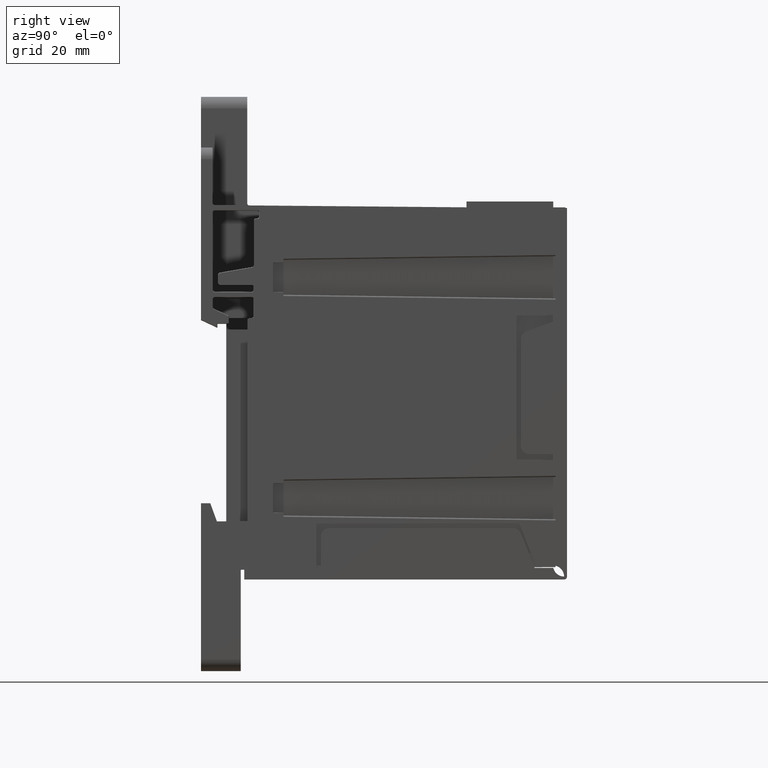
[diagram: clean part render]
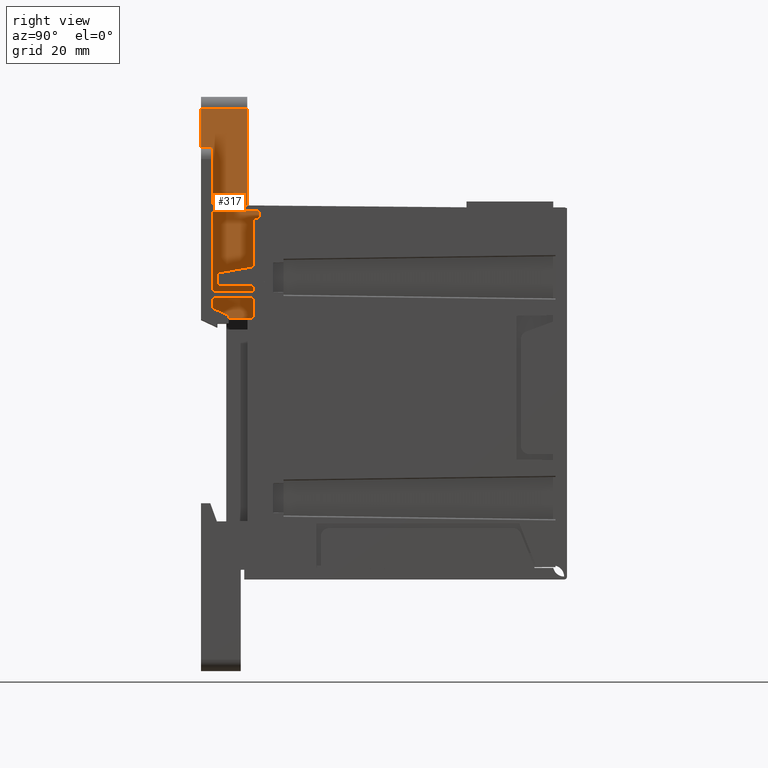
[diagram: same view with one face highlighted and labeled with its STEP entity id]
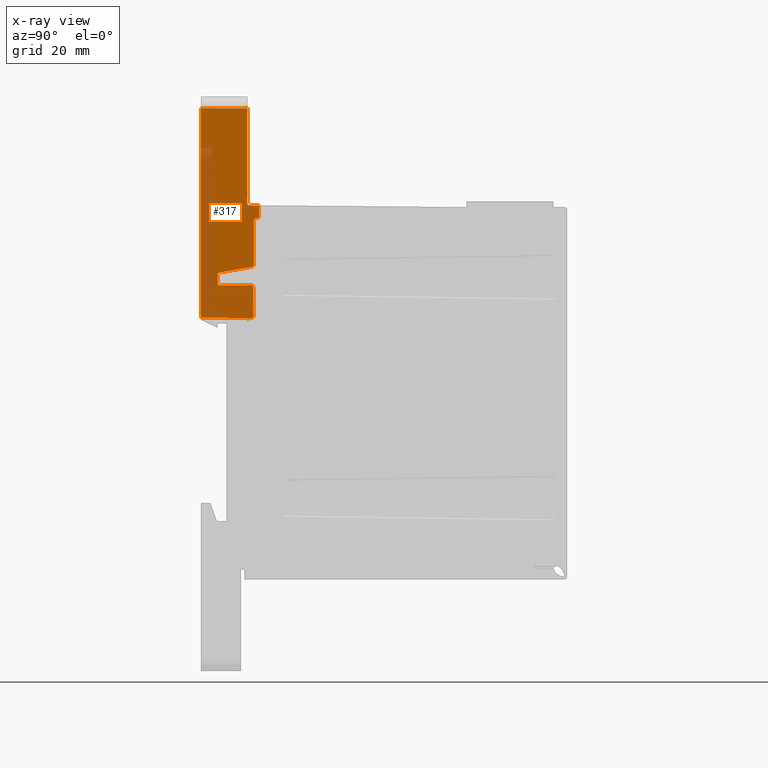
[diagram: x-ray of the same camera — body ghosted, the highlighted face saturated]
A machine part, right view. The second image highlights one B-rep face of the part: STEP entity #317.
The next image is the same camera in x-ray: the body ghosted, the highlighted face saturated — about 25% of this face is hidden behind the body in this view.
In plain terms, the highlighted planar face has unit normal (-1, -0, -0).
Its self-contained STEP definition (entity closure, byte-faithful):
#317 = ADVANCED_FACE ( 'NONE', ( #2563 ), #8201, .F. ) ;
#1455 = ORIENTED_EDGE ( 'NONE', *, *, #11596, .F. ) ;
#1456 = ORIENTED_EDGE ( 'NONE', *, *, #11601, .T. ) ;
#1457 = ORIENTED_EDGE ( 'NONE', *, *, #11471, .T. ) ;
#1458 = ORIENTED_EDGE ( 'NONE', *, *, #11599, .T. ) ;
#1459 = ORIENTED_EDGE ( 'NONE', *, *, #11594, .F. ) ;
#1460 = ORIENTED_EDGE ( 'NONE', *, *, #11592, .T. ) ;
#1463 = ORIENTED_EDGE ( 'NONE', *, *, #11589, .F. ) ;
#1464 = ORIENTED_EDGE ( 'NONE', *, *, #11575, .T. ) ;
#1465 = ORIENTED_EDGE ( 'NONE', *, *, #11570, .F. ) ;
#1466 = ORIENTED_EDGE ( 'NONE', *, *, #11587, .T. ) ;
#1467 = ORIENTED_EDGE ( 'NONE', *, *, #11585, .T. ) ;
#1468 = ORIENTED_EDGE ( 'NONE', *, *, #11577, .T. ) ;
#1469 = ORIENTED_EDGE ( 'NONE', *, *, #11583, .T. ) ;
#1470 = ORIENTED_EDGE ( 'NONE', *, *, #11581, .T. ) ;
#1471 = ORIENTED_EDGE ( 'NONE', *, *, #11580, .T. ) ;
#1472 = ORIENTED_EDGE ( 'NONE', *, *, #11568, .T. ) ;
#1473 = ORIENTED_EDGE ( 'NONE', *, *, #11573, .T. ) ;
#1474 = ORIENTED_EDGE ( 'NONE', *, *, #11566, .F. ) ;
#1475 = ORIENTED_EDGE ( 'NONE', *, *, #11560, .T. ) ;
#1476 = ORIENTED_EDGE ( 'NONE', *, *, #11564, .T. ) ;
#1477 = ORIENTED_EDGE ( 'NONE', *, *, #11562, .F. ) ;
#1478 = ORIENTED_EDGE ( 'NONE', *, *, #11549, .F. ) ;
#1479 = ORIENTED_EDGE ( 'NONE', *, *, #11556, .T. ) ;
#1480 = ORIENTED_EDGE ( 'NONE', *, *, #11558, .F. ) ;
#2563 = FACE_OUTER_BOUND ( 'NONE', #27802, .T. ) ;
#3117 = VERTEX_POINT ( 'NONE', #6854 ) ;
#3124 = VERTEX_POINT ( 'NONE', #6862 ) ;
#3138 = VERTEX_POINT ( 'NONE', #6875 ) ;
#3139 = VERTEX_POINT ( 'NONE', #6876 ) ;
#3169 = VERTEX_POINT ( 'NONE', #6886 ) ;
#3200 = VERTEX_POINT ( 'NONE', #6909 ) ;
#3239 = VERTEX_POINT ( 'NONE', #6930 ) ;
#3249 = VERTEX_POINT ( 'NONE', #6941 ) ;
#3260 = VERTEX_POINT ( 'NONE', #6948 ) ;
#3261 = VERTEX_POINT ( 'NONE', #6954 ) ;
#3262 = VERTEX_POINT ( 'NONE', #6940 ) ;
#3273 = VERTEX_POINT ( 'NONE', #6965 ) ;
#3274 = VERTEX_POINT ( 'NONE', #6957 ) ;
#3276 = VERTEX_POINT ( 'NONE', #6958 ) ;
#3281 = VERTEX_POINT ( 'NONE', #6972 ) ;
#3289 = VERTEX_POINT ( 'NONE', #6983 ) ;
#3295 = VERTEX_POINT ( 'NONE', #6990 ) ;
#3299 = VERTEX_POINT ( 'NONE', #6994 ) ;
#3312 = VERTEX_POINT ( 'NONE', #7003 ) ;
#3344 = VERTEX_POINT ( 'NONE', #7018 ) ;
#3398 = VERTEX_POINT ( 'NONE', #7087 ) ;
#3459 = VERTEX_POINT ( 'NONE', #7146 ) ;
#3623 = VERTEX_POINT ( 'NONE', #7198 ) ;
#3625 = VERTEX_POINT ( 'NONE', #7201 ) ;
#5594 = CIRCLE ( 'NONE', #19460, 0.01499999999999997700 ) ;
#5641 = LINE ( 'NONE', #7483, #5644 ) ;
#5644 = VECTOR ( 'NONE', #7485, 39.37007874015748100 ) ;
#5648 = LINE ( 'NONE', #7497, #5649 ) ;
#5649 = VECTOR ( 'NONE', #7500, 39.37007874015748100 ) ;
#5650 = LINE ( 'NONE', #7513, #5651 ) ;
#5651 = VECTOR ( 'NONE', #7515, 39.37007874015748100 ) ;
#5652 = LINE ( 'NONE', #7528, #5653 ) ;
#5653 = VECTOR ( 'NONE', #7531, 39.37007874015748900 ) ;
#5654 = LINE ( 'NONE', #7542, #5656 ) ;
#5655 = LINE ( 'NONE', #7587, #5672 ) ;
#5656 = VECTOR ( 'NONE', #7546, 39.37007874015748100 ) ;
#5657 = LINE ( 'NONE', #7558, #5658 ) ;
#5658 = VECTOR ( 'NONE', #7561, 39.37007874015748100 ) ;
#5659 = LINE ( 'NONE', #7574, #5661 ) ;
#5660 = LINE ( 'NONE', #7579, #5663 ) ;
#5661 = VECTOR ( 'NONE', #7577, 39.37007874015748100 ) ;
#5662 = CIRCLE ( 'NONE', #19465, 0.01499999999999997700 ) ;
#5663 = VECTOR ( 'NONE', #7581, 39.37007874015748100 ) ;
#5664 = LINE ( 'NONE', #7566, #5666 ) ;
#5665 = LINE ( 'NONE', #7595, #5668 ) ;
#5666 = VECTOR ( 'NONE', #7564, 39.37007874015748100 ) ;
#5667 = LINE ( 'NONE', #7600, #5670 ) ;
#5668 = VECTOR ( 'NONE', #7598, 39.37007874015748100 ) ;
#5670 = VECTOR ( 'NONE', #7602, 39.37007874015748100 ) ;
#5671 = LINE ( 'NONE', #7608, #5674 ) ;
#5672 = VECTOR ( 'NONE', #7604, 39.37007874015748100 ) ;
#5673 = LINE ( 'NONE', #7613, #5676 ) ;
#5674 = VECTOR ( 'NONE', #7611, 39.37007874015748100 ) ;
#5675 = CIRCLE ( 'NONE', #19466, 0.01499999999999997700 ) ;
#5676 = VECTOR ( 'NONE', #7615, 39.37007874015748100 ) ;
#6854 = CARTESIAN_POINT ( 'NONE',  ( 0.04250000000000002400, -0.3199722876330932100, 0.4855851370558659200 ) ) ;
#6862 = CARTESIAN_POINT ( 'NONE',  ( 0.04250000000000002400, -1.070937157631061300E-018, 0.4647358891054180200 ) ) ;
#6875 = CARTESIAN_POINT ( 'NONE',  ( 0.04250000000000001000, -0.2038397487222173800, 0.7806355570833226600 ) ) ;
#6876 = CARTESIAN_POINT ( 'NONE',  ( 0.04250000000000002400, 0.01499999999999999800, 0.4797358891054179800 ) ) ;
#6886 = CARTESIAN_POINT ( 'NONE',  ( 0.04250000000000015600, 0.04499999999999999800, 1.155840142488896400 ) ) ;
#6909 = CARTESIAN_POINT ( 'NONE',  ( 0.04250000000000006600, -1.106111767379138900E-018, 0.4799999999999999300 ) ) ;
#6930 = CARTESIAN_POINT ( 'NONE',  ( 0.04249999999999987100, 0.08116025127778271600, 1.259291725217234000 ) ) ;
#6940 = CARTESIAN_POINT ( 'NONE',  ( 0.04249999999999975300, -4.447491064670287900E-018, 1.929999999999999700 ) ) ;
#6941 = CARTESIAN_POINT ( 'NONE',  ( 0.04249999999999987100, 0.01486910196752440300, 1.259870239312961900 ) ) ;
#6948 = CARTESIAN_POINT ( 'NONE',  ( 0.04250000000000006600, 0.01526178609655925000, 0.4797336045327638700 ) ) ;
#6954 = CARTESIAN_POINT ( 'NONE',  ( 0.04249999999999987800, 0.06616039406697163400, 1.170840285279444600 ) ) ;
#6957 = CARTESIAN_POINT ( 'NONE',  ( 0.04250000000000015600, 0.04499999999999999800, 0.8496857327700504400 ) ) ;
#6958 = CARTESIAN_POINT ( 'NONE',  ( 0.04249999999999975300, -0.3199722876330932100, 1.930000000000000200 ) ) ;
#6965 = CARTESIAN_POINT ( 'NONE',  ( 0.04250000000000001700, -0.1914445893813279400, 0.7954075327586053200 ) ) ;
#6972 = CARTESIAN_POINT ( 'NONE',  ( 0.04250000000000006600, 0.02589832239067510500, 0.4795479431011388000 ) ) ;
#6983 = CARTESIAN_POINT ( 'NONE',  ( 0.04249999999999987800, 0.05999999999999999800, 1.170840285279444600 ) ) ;
#6990 = CARTESIAN_POINT ( 'NONE',  ( 0.04249999999999988500, 0.08116025127778266100, 1.185840142490255800 ) ) ;
#6994 = CARTESIAN_POINT ( 'NONE',  ( 0.04249999999999987100, -2.937809045469425800E-018, 1.274869668158924200 ) ) ;
#7003 = CARTESIAN_POINT ( 'NONE',  ( 0.04250000000000001700, -0.1888398915114063700, 0.7061602512777825900 ) ) ;
#7018 = CARTESIAN_POINT ( 'NONE',  ( 0.04250000000000001000, 0.03260469786992155300, 0.8349134671095027600 ) ) ;
#7087 = CARTESIAN_POINT ( 'NONE',  ( 0.04250000000000001700, 0.02616039406697159100, 0.7061602512777825900 ) ) ;
#7146 = CARTESIAN_POINT ( 'NONE',  ( 0.04249999999999996800, 0.04116025127778260400, 0.6911603940669716100 ) ) ;
#7198 = CARTESIAN_POINT ( 'NONE',  ( 0.04250000000000001700, -0.2038397487222173800, 0.7211601084885936900 ) ) ;
#7201 = CARTESIAN_POINT ( 'NONE',  ( 0.04250000000000001000, 0.04116025127778260400, 0.4945456535436717500 ) ) ;
#7341 = CARTESIAN_POINT ( 'NONE',  ( 0.04250000000000002400, 0.01499999999999999800, 0.4647358891054180200 ) ) ;
#7342 = DIRECTION ( 'NONE',  ( -1.000000000000000000, -3.825590374862821300E-033, -1.785521564486446600E-016 ) ) ;
#7343 = DIRECTION ( 'NONE',  ( 0.0000000000000000000, 0.0000000000000000000, 1.000000000000000000 ) ) ;
#7469 = CARTESIAN_POINT ( 'NONE',  ( 0.04249999999999996800, 0.04116025127778260400, 0.6911603940669716100 ) ) ;
#7470 = CARTESIAN_POINT ( 'NONE',  ( 0.04250000000000001700, 0.04116025127778262500, 0.6999471416330189700 ) ) ;
#7483 = CARTESIAN_POINT ( 'NONE',  ( 0.04249999999999987800, 0.04116025127778260400, 1.176999999999999800 ) ) ;
#7485 = DIRECTION ( 'NONE',  ( 1.854910503525518900E-016, 3.083485213751436700E-018, -1.000000000000000000 ) ) ;
#7490 = CARTESIAN_POINT ( 'NONE',  ( 0.04250000000000000300, -0.1976266390774537300, 0.7061602512777827000 ) ) ;
#7491 = CARTESIAN_POINT ( 'NONE',  ( 0.04250000000000001700, -0.1888398915114063700, 0.7061602512777825900 ) ) ;
#7492 = CARTESIAN_POINT ( 'NONE',  ( 0.04250000000000001700, 0.03494714163301895100, 0.7061602512777825900 ) ) ;
#7494 = CARTESIAN_POINT ( 'NONE',  ( 0.04250000000000001700, 0.02616039406697159100, 0.7061602512777825900 ) ) ;
#7497 = CARTESIAN_POINT ( 'NONE',  ( 0.04250000000000001700, 0.04500000000000006100, 0.7061602512777825900 ) ) ;
#7500 = DIRECTION ( 'NONE',  ( 7.703719777548943400E-033, 1.000000000000000000, 2.304399515373239000E-018 ) ) ;
#7502 = CARTESIAN_POINT ( 'NONE',  ( 0.04250000000000001700, -0.2038397487222174400, 0.7882512043347325000 ) ) ;
#7504 = CARTESIAN_POINT ( 'NONE',  ( 0.04250000000000001000, -0.2038397487222173800, 0.7806355570833226600 ) ) ;
#7506 = CARTESIAN_POINT ( 'NONE',  ( 0.04250000000000000300, -0.2038397487222173600, 0.7123733609225462200 ) ) ;
#7508 = CARTESIAN_POINT ( 'NONE',  ( 0.04250000000000001700, -0.2038397487222173800, 0.7211601084885936900 ) ) ;
#7513 = CARTESIAN_POINT ( 'NONE',  ( 0.04250000000000001700, -0.2038397487222173800, 0.7099999999999998500 ) ) ;
#7515 = DIRECTION ( 'NONE',  ( 1.854910503525518900E-016, 3.083485213751436700E-018, -1.000000000000000000 ) ) ;
#7518 = CARTESIAN_POINT ( 'NONE',  ( 0.04249999999999994100, 0.04010471078677838700, 0.8362359217424066800 ) ) ;
#7520 = CARTESIAN_POINT ( 'NONE',  ( 0.04250000000000001000, 0.03260469786992155300, 0.8349134671095027600 ) ) ;
#7521 = CARTESIAN_POINT ( 'NONE',  ( 0.04250000000000001700, -0.1989445378387225100, 0.7940850894916439100 ) ) ;
#7523 = CARTESIAN_POINT ( 'NONE',  ( 0.04250000000000001700, -0.1914445893813279400, 0.7954075327586053200 ) ) ;
#7528 = CARTESIAN_POINT ( 'NONE',  ( 0.04250000000000001700, -0.2006667653683120200, 0.7937814143112583700 ) ) ;
#7531 = DIRECTION ( 'NONE',  ( 3.221018286724614700E-017, -0.9848077530122074700, -0.1736481776669341300 ) ) ;
#7534 = CARTESIAN_POINT ( 'NONE',  ( 0.04249999999999987100, 0.04499999999999999800, 1.164627022698066600 ) ) ;
#7536 = CARTESIAN_POINT ( 'NONE',  ( 0.04249999999999994100, 0.04499999999999999800, 0.8420699475680010200 ) ) ;
#7538 = CARTESIAN_POINT ( 'NONE',  ( 0.04250000000000015600, 0.04499999999999999800, 0.8496857327700504400 ) ) ;
#7542 = CARTESIAN_POINT ( 'NONE',  ( 0.04250000000000015600, 0.04499999999999999800, 1.260000000000000000 ) ) ;
#7544 = CARTESIAN_POINT ( 'NONE',  ( 0.04250000000000015600, 0.04499999999999999800, 1.155840142488896400 ) ) ;
#7546 = DIRECTION ( 'NONE',  ( 6.938893903907228400E-018, 2.304399515373206600E-018, -1.000000000000000000 ) ) ;
#7548 = CARTESIAN_POINT ( 'NONE',  ( 0.04249999999999987800, 0.06616039406697163400, 1.170840285279444600 ) ) ;
#7551 = CARTESIAN_POINT ( 'NONE',  ( 0.04249999999999987800, 0.07494714163301900700, 1.170840285279444800 ) ) ;
#7553 = CARTESIAN_POINT ( 'NONE',  ( 0.04249999999999987100, 0.05121320343559641900, 1.170840285279444600 ) ) ;
#7555 = CARTESIAN_POINT ( 'NONE',  ( 0.04249999999999987800, 0.05999999999999999800, 1.170840285279444600 ) ) ;
#7558 = CARTESIAN_POINT ( 'NONE',  ( 0.04249999999999987800, 0.04499999999999999800, 1.170840285279444600 ) ) ;
#7561 = DIRECTION ( 'NONE',  ( 7.703719777548943400E-033, 1.000000000000000000, 2.304399515373239000E-018 ) ) ;
#7564 = DIRECTION ( 'NONE',  ( -1.854910503525519100E-016, -2.304399515373206600E-018, 1.000000000000000000 ) ) ;
#7566 = CARTESIAN_POINT ( 'NONE',  ( 0.04250000000000002400, -1.106111767379138900E-018, 0.4799999999999999800 ) ) ;
#7568 = CARTESIAN_POINT ( 'NONE',  ( 0.04249999999999987800, 0.08116025127778264700, 1.177053394924208400 ) ) ;
#7570 = CARTESIAN_POINT ( 'NONE',  ( 0.04249999999999988500, 0.08116025127778266100, 1.185840142490255800 ) ) ;
#7574 = CARTESIAN_POINT ( 'NONE',  ( 0.04249999999999987800, 0.08116025127778266100, 1.227000536557227000 ) ) ;
#7577 = DIRECTION ( 'NONE',  ( -1.854910503525518900E-016, -3.083485213751436700E-018, 1.000000000000000000 ) ) ;
#7579 = CARTESIAN_POINT ( 'NONE',  ( 0.04249999999999987100, -2.121905330639698200, 1.278517587284999000 ) ) ;
#7581 = DIRECTION ( 'NONE',  ( -1.618694235532222300E-018, -0.9999619230641712000, 0.008726535498373952000 ) ) ;
#7587 = CARTESIAN_POINT ( 'NONE',  ( 0.04250000000000001700, -2.128225461826353200, 0.5171483136180649000 ) ) ;
#7589 = CARTESIAN_POINT ( 'NONE',  ( 0.04249999999999987800, 0.01499999999999999800, 1.274869668158924400 ) ) ;
#7591 = DIRECTION ( 'NONE',  ( -1.000000000000000000, -3.825590374862821300E-033, -1.785521564486446600E-016 ) ) ;
#7593 = DIRECTION ( 'NONE',  ( 0.0000000000000000000, 0.0000000000000000000, 1.000000000000000000 ) ) ;
#7595 = CARTESIAN_POINT ( 'NONE',  ( 0.04249999999999975300, -2.128873888052530200, 1.930000000000000200 ) ) ;
#7598 = DIRECTION ( 'NONE',  ( -7.703719777548943400E-033, -1.000000000000000000, -2.304399515373239000E-018 ) ) ;
#7600 = CARTESIAN_POINT ( 'NONE',  ( 0.04250000000000002400, -0.3199722876330932100, 0.4799999999999999800 ) ) ;
#7602 = DIRECTION ( 'NONE',  ( -1.854910503525518900E-016, -2.304399515373206600E-018, 1.000000000000000000 ) ) ;
#7604 = DIRECTION ( 'NONE',  ( 3.237265201231371700E-018, 0.9998476951563912700, -0.01745240643728354600 ) ) ;
#7608 = CARTESIAN_POINT ( 'NONE',  ( 0.04250000000000030800, 2.903543389370239800E-018, -1.259999999999999600 ) ) ;
#7611 = DIRECTION ( 'NONE',  ( -1.854910503525518900E-016, -2.304399515373206600E-018, 1.000000000000000000 ) ) ;
#7613 = CARTESIAN_POINT ( 'NONE',  ( 0.04250000000000006600, -1.106111767379138900E-018, 0.4799999999999999300 ) ) ;
#7615 = DIRECTION ( 'NONE',  ( -1.211003966361850800E-019, -0.9998476951563912700, 0.01745240643728344200 ) ) ;
#7618 = CARTESIAN_POINT ( 'NONE',  ( 0.04250000000000006600, 0.02589832239067510500, 0.4795479431011388000 ) ) ;
#7620 = CARTESIAN_POINT ( 'NONE',  ( 0.04250000000000001700, 0.03480592935366414600, 0.4793924602432446700 ) ) ;
#7622 = CARTESIAN_POINT ( 'NONE',  ( 0.04250000000000002400, 0.01499999999999999800, 0.4647358891054180200 ) ) ;
#7624 = DIRECTION ( 'NONE',  ( -1.000000000000000000, -3.825590374862821300E-033, -1.785521564486446600E-016 ) ) ;
#7626 = DIRECTION ( 'NONE',  ( 0.0000000000000000000, 0.0000000000000000000, 1.000000000000000000 ) ) ;
#7630 = CARTESIAN_POINT ( 'NONE',  ( 0.04250000000000001700, 0.04116025127778260400, 0.4856367745092528600 ) ) ;
#7632 = CARTESIAN_POINT ( 'NONE',  ( 0.04250000000000001000, 0.04116025127778260400, 0.4945456535436717500 ) ) ;
#8201 = PLANE ( 'NONE',  #21821 ) ;
#8222 = CARTESIAN_POINT ( 'NONE',  ( 0.04250000000000002400, -2.128873888052530200, 0.4799999999999999800 ) ) ;
#8223 = DIRECTION ( 'NONE',  ( -1.000000000000000000, -3.809600391113431300E-033, -1.854910503525518900E-016 ) ) ;
#8224 = DIRECTION ( 'NONE',  ( -1.854910503525518900E-016, -2.304399515373206600E-018, 1.000000000000000000 ) ) ;
#11471 = EDGE_CURVE ( 'NONE', #3124, #3139, #5594, .T. ) ;
#11549 = EDGE_CURVE ( 'NONE', #3459, #3625, #5641, .T. ) ;
#11556 = EDGE_CURVE ( 'NONE', #3459, #3398, #23899, .T. ) ;
#11558 = EDGE_CURVE ( 'NONE', #3312, #3398, #5648, .T. ) ;
#11560 = EDGE_CURVE ( 'NONE', #3312, #3623, #23900, .T. ) ;
#11562 = EDGE_CURVE ( 'NONE', #3138, #3623, #5650, .T. ) ;
#11564 = EDGE_CURVE ( 'NONE', #3138, #3273, #23901, .T. ) ;
#11566 = EDGE_CURVE ( 'NONE', #3344, #3273, #5652, .T. ) ;
#11568 = EDGE_CURVE ( 'NONE', #3344, #3274, #23902, .T. ) ;
#11570 = EDGE_CURVE ( 'NONE', #3169, #3274, #5654, .T. ) ;
#11573 = EDGE_CURVE ( 'NONE', #3169, #3289, #23903, .T. ) ;
#11575 = EDGE_CURVE ( 'NONE', #3289, #3261, #5657, .T. ) ;
#11577 = EDGE_CURVE ( 'NONE', #3261, #3295, #23904, .T. ) ;
#11580 = EDGE_CURVE ( 'NONE', #3295, #3239, #5659, .T. ) ;
#11581 = EDGE_CURVE ( 'NONE', #3239, #3249, #5660, .T. ) ;
#11583 = EDGE_CURVE ( 'NONE', #3249, #3299, #5662, .T. ) ;
#11585 = EDGE_CURVE ( 'NONE', #3299, #3262, #5664, .T. ) ;
#11587 = EDGE_CURVE ( 'NONE', #3262, #3276, #5665, .T. ) ;
#11589 = EDGE_CURVE ( 'NONE', #3117, #3276, #5667, .T. ) ;
#11592 = EDGE_CURVE ( 'NONE', #3117, #3200, #5655, .T. ) ;
#11594 = EDGE_CURVE ( 'NONE', #3124, #3200, #5671, .T. ) ;
#11596 = EDGE_CURVE ( 'NONE', #3281, #3260, #5673, .T. ) ;
#11599 = EDGE_CURVE ( 'NONE', #3139, #3260, #5675, .T. ) ;
#11601 = EDGE_CURVE ( 'NONE', #3281, #3625, #23905, .T. ) ;
#19460 = AXIS2_PLACEMENT_3D ( 'NONE', #7341, #7342, #7343 ) ;
#19465 = AXIS2_PLACEMENT_3D ( 'NONE', #7589, #7591, #7593 ) ;
#19466 = AXIS2_PLACEMENT_3D ( 'NONE', #7622, #7624, #7626 ) ;
#21821 = AXIS2_PLACEMENT_3D ( 'NONE', #8222, #8223, #8224 ) ;
#23899 =( BOUNDED_CURVE ( )  B_SPLINE_CURVE ( 3, ( #7469, #7470, #7492, #7494 ),
 .UNSPECIFIED., .F., .F. ) 
 B_SPLINE_CURVE_WITH_KNOTS ( ( 4, 4 ),
 ( 2.356204009426334800, 3.926981297753316300 ),
 .UNSPECIFIED. ) 
 CURVE ( )  GEOMETRIC_REPRESENTATION_ITEM ( )  RATIONAL_B_SPLINE_CURVE ( ( 1.000000000000000000, 0.8047423415129286700, 0.8047423415129286700, 1.000000000000000000 ) ) 
 REPRESENTATION_ITEM ( '' )  );
#23900 =( BOUNDED_CURVE ( )  B_SPLINE_CURVE ( 3, ( #7491, #7490, #7506, #7508 ),
 .UNSPECIFIED., .F., .F. ) 
 B_SPLINE_CURVE_WITH_KNOTS ( ( 4, 4 ),
 ( 2.356204009426271300, 3.926981297753251400 ),
 .UNSPECIFIED. ) 
 CURVE ( )  GEOMETRIC_REPRESENTATION_ITEM ( )  RATIONAL_B_SPLINE_CURVE ( ( 1.000000000000000000, 0.8047423415129288900, 0.8047423415129288900, 1.000000000000000000 ) ) 
 REPRESENTATION_ITEM ( '' )  );
#23901 =( BOUNDED_CURVE ( )  B_SPLINE_CURVE ( 3, ( #7504, #7502, #7521, #7523 ),
 .UNSPECIFIED., .F., .F. ) 
 B_SPLINE_CURVE_WITH_KNOTS ( ( 4, 4 ),
 ( 2.443468940388970400, 3.839716366790529600 ),
 .UNSPECIFIED. ) 
 CURVE ( )  GEOMETRIC_REPRESENTATION_ITEM ( )  RATIONAL_B_SPLINE_CURVE ( ( 1.000000000000000000, 0.8440330516152616500, 0.8440330516152616500, 1.000000000000000000 ) ) 
 REPRESENTATION_ITEM ( '' )  );
#23902 =( BOUNDED_CURVE ( )  B_SPLINE_CURVE ( 3, ( #7520, #7518, #7536, #7538 ),
 .UNSPECIFIED., .F., .F. ) 
 B_SPLINE_CURVE_WITH_KNOTS ( ( 4, 4 ),
 ( 3.316123900283708200, 4.712388980384689700 ),
 .UNSPECIFIED. ) 
 CURVE ( )  GEOMETRIC_REPRESENTATION_ITEM ( )  RATIONAL_B_SPLINE_CURVE ( ( 1.000000000000000000, 0.8440292691049556800, 0.8440292691049556800, 1.000000000000000000 ) ) 
 REPRESENTATION_ITEM ( '' )  );
#23903 =( BOUNDED_CURVE ( )  B_SPLINE_CURVE ( 3, ( #7544, #7534, #7553, #7555 ),
 .UNSPECIFIED., .F., .F. ) 
 B_SPLINE_CURVE_WITH_KNOTS ( ( 4, 4 ),
 ( 1.570796326794896600, 3.141592653589793100 ),
 .UNSPECIFIED. ) 
 CURVE ( )  GEOMETRIC_REPRESENTATION_ITEM ( )  RATIONAL_B_SPLINE_CURVE ( ( 1.000000000000000000, 0.8047378541243649400, 0.8047378541243649400, 1.000000000000000000 ) ) 
 REPRESENTATION_ITEM ( '' )  );
#23904 =( BOUNDED_CURVE ( )  B_SPLINE_CURVE ( 3, ( #7548, #7551, #7568, #7570 ),
 .UNSPECIFIED., .F., .F. ) 
 B_SPLINE_CURVE_WITH_KNOTS ( ( 4, 4 ),
 ( 2.356204009426335700, 3.926981297753317200 ),
 .UNSPECIFIED. ) 
 CURVE ( )  GEOMETRIC_REPRESENTATION_ITEM ( )  RATIONAL_B_SPLINE_CURVE ( ( 1.000000000000000000, 0.8047423415129286700, 0.8047423415129286700, 1.000000000000000000 ) ) 
 REPRESENTATION_ITEM ( '' )  );
#23905 =( BOUNDED_CURVE ( )  B_SPLINE_CURVE ( 3, ( #7618, #7620, #7630, #7632 ),
 .UNSPECIFIED., .F., .F. ) 
 B_SPLINE_CURVE_WITH_KNOTS ( ( 4, 4 ),
 ( 4.712388980384709200, 6.300638433539911700 ),
 .UNSPECIFIED. ) 
 CURVE ( )  GEOMETRIC_REPRESENTATION_ITEM ( )  RATIONAL_B_SPLINE_CURVE ( ( 1.000000000000000000, 0.8006062157043776200, 0.8006062157043776200, 1.000000000000000000 ) ) 
 REPRESENTATION_ITEM ( '' )  );
#27802 = EDGE_LOOP ( 'NONE', ( #1478, #1479, #1480, #1475, #1477, #1476, #1474, #1472, #1465, #1473, #1464, #1468, #1471, #1470, #1469, #1467, #1466, #1463, #1460, #1459, #1457, #1458, #1455, #1456 ) ) ;